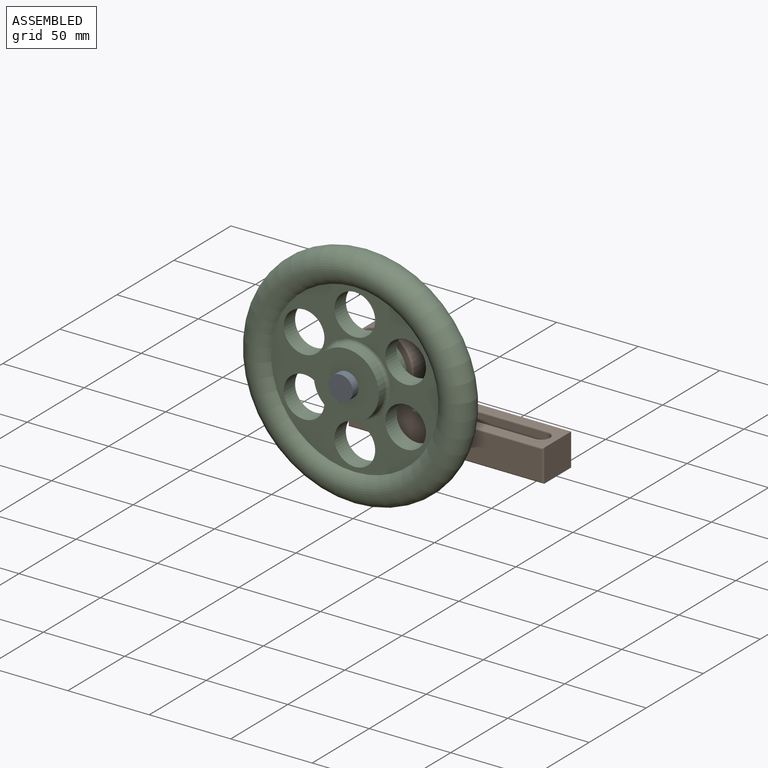
[diagram: assembled view]
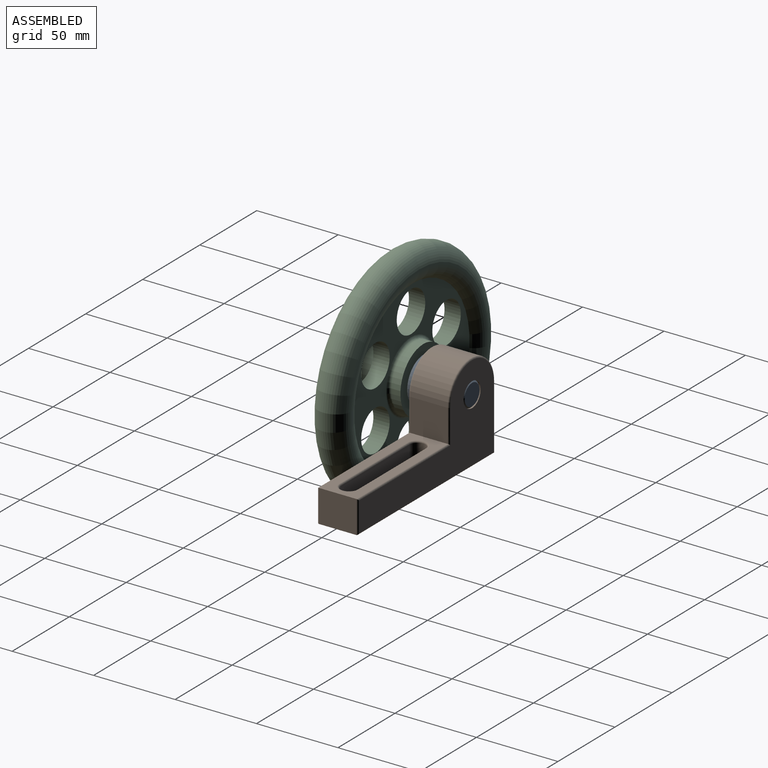
[diagram: assembled view, second angle]
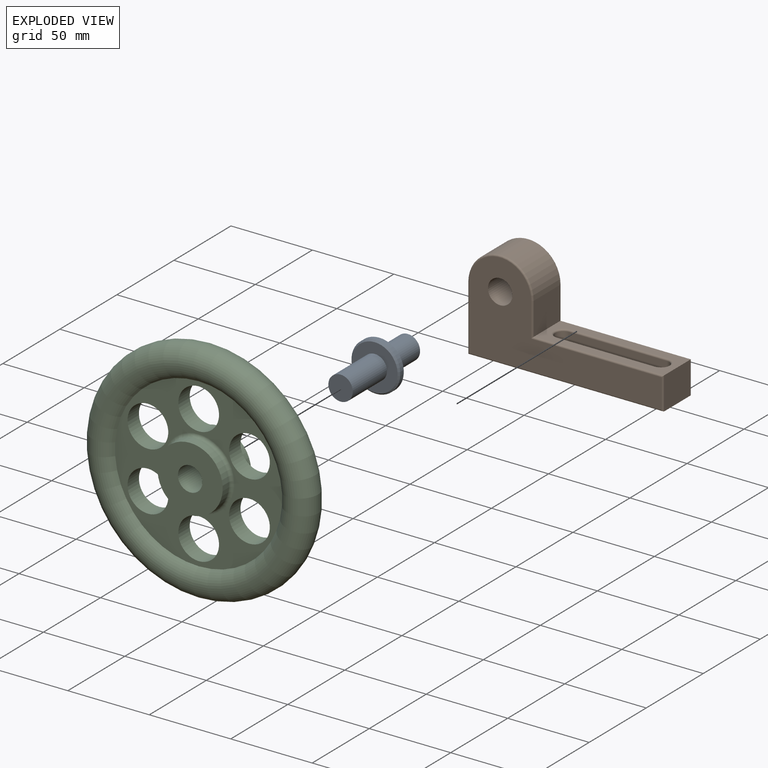
[diagram: exploded view]
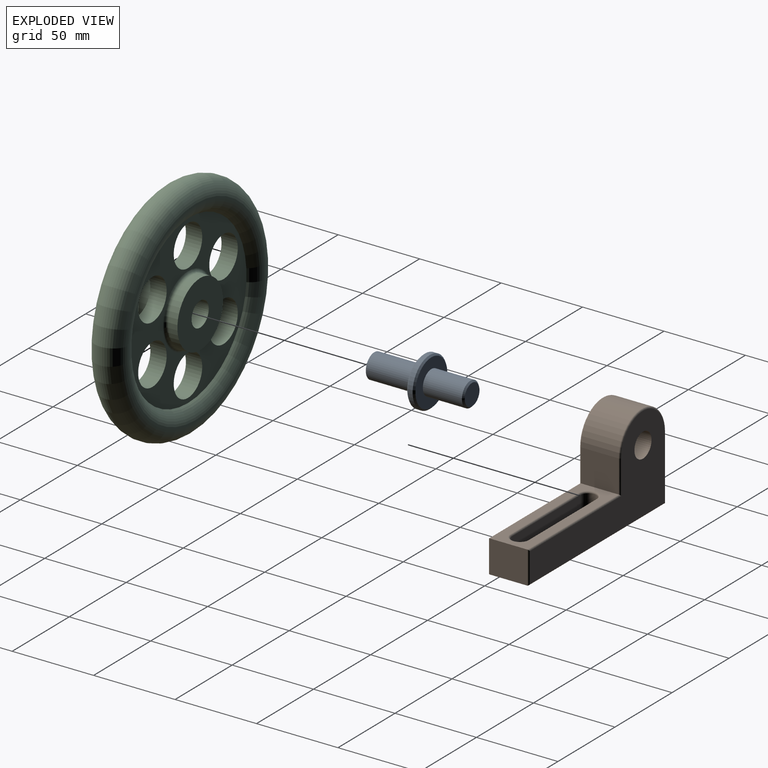
[diagram: exploded view, second angle]
ASSEMBLY  parts=3 mates=2
PART A: 10 faces, bbox 30x60x30 mm
  f0: plane 13x13mm, normal (0,1,0), area 132.7mm2, adj f9
  f1: cylinder r=7.5mm len=24mm, axis (0,1,0), area 1131mm2, adj f2,f9
  f2: plane 28x28mm, normal (0,1,0), area 439mm2, adj f1,f8
  f3: cylinder r=15mm len=30mm, axis (0,1,0), area 282.7mm2, adj f7,f8
  f4: plane 28x28mm, normal (0,-1,0), area 439mm2, adj f5,f7
  f5: cylinder r=7.5mm len=30mm, axis (0,1,0), area 1413.7mm2, adj f4,f6
  f6: plane 15x15mm, normal (0,-1,0), area 176.7mm2, adj f5
  f7: cone r=15mm half-angle=45deg, axis (0,1,0), area 128.8mm2, adj f3,f4
  f8: cone r=14mm half-angle=45deg, axis (0,-1,0), area 128.8mm2, adj f2,f3
  f9: cone r=6.5mm half-angle=45deg, axis (0,-1,0), area 62.2mm2, adj f0,f1
PART B: 33 faces, bbox 121.6x25x61.6 mm
  f0: plane 80x23mm, normal (0,0,1), area 1006.9mm2, adj f2,f5,f13,f19,f29,f30,f31,f32
  f1: plane 120x23mm, normal (0,0,-1), area 1926.9mm2, adj f4,f5,f9,f15,f25,f26,f27,f28
  f2: plane 23x20mm, normal (1,0,0), area 460mm2, adj f0,f3,f14,f20
  f3: cylinder r=20mm len=40mm, axis (0,1,0), area 1445.1mm2, adj f2,f4,f12,f18
  f4: plane 40x23mm, normal (-1,0,0), area 920mm2, adj f1,f3,f10,f16
  f5: plane 23x20mm, normal (1,0,0), area 460mm2, adj f0,f1,f11,f17
  f6: plane 118x58mm, normal (0,-1,0), area 3312.3mm2, adj f8,f9,f10,f11,f12,f13,f14
  f7: plane 118x58mm, normal (0,1,0), area 3312.3mm2, adj f8,f15,f16,f17,f18,f19,f20
  f8: cylinder r=7.5mm len=25mm, axis (0,-1,0), area 1178.1mm2, adj f6,f7
  f9: cylinder r=1mm len=120mm, axis (-1,0,0), area 187.4mm2, adj f1,f6,f10,f11
  f10: cylinder r=1mm len=40mm, axis (0,0,1), area 62.3mm2, adj f4,f6,f9,f12
  f11: cylinder r=1mm len=20mm, axis (0,0,-1), area 30.3mm2, adj f5,f6,f9,f13
  f12: torus R=19mm, axis (0,-1,0), area 96.9mm2, adj f3,f6,f10,f14
  f13: cylinder r=1mm len=81mm, axis (1,0,0), area 125.7mm2, adj f0,f6,f11,f14
  f14: cylinder r=1mm len=21mm, axis (0,0,-1), area 32mm2, adj f2,f6,f12,f13
  f15: cylinder r=1mm len=120mm, axis (1,0,0), area 187.4mm2, adj f1,f7,f16,f17
  f16: cylinder r=1mm len=40mm, axis (0,0,-1), area 62.3mm2, adj f4,f7,f15,f18
  f17: cylinder r=1mm len=20mm, axis (0,0,1), area 30.3mm2, adj f5,f7,f15,f19
  f18: torus R=19mm, axis (0,-1,0), area 96.9mm2, adj f3,f7,f16,f20
  f19: cylinder r=1mm len=81mm, axis (-1,0,0), area 125.7mm2, adj f0,f7,f17,f20
  f20: cylinder r=1mm len=21mm, axis (0,0,1), area 32mm2, adj f2,f7,f18,f19
  f21: plane 60x18mm, normal (0,-1,0), area 1080mm2, adj f22,f24,f25,f31
  f22: cylinder r=5mm len=18mm, axis (0,0,1), area 282.7mm2, adj f21,f23,f27,f29
  f23: plane 60x18mm, normal (0,1,0), area 1080mm2, adj f22,f24,f28,f30
  f24: cylinder r=5mm len=18mm, axis (0,0,1), area 282.7mm2, adj f21,f23,f26,f32
  f25: cylinder r=1mm len=60mm, axis (-1,0,0), area 94.2mm2, adj f1,f21,f26,f27
  f26: torus R=6mm, axis (0,0,-1), area 26.5mm2, adj f1,f24,f25,f28
  f27: torus R=6mm, axis (0,0,-1), area 26.5mm2, adj f1,f22,f25,f28
  f28: cylinder r=1mm len=60mm, axis (1,0,0), area 94.2mm2, adj f1,f23,f26,f27
  f29: torus R=6mm, axis (0,0,1), area 26.5mm2, adj f0,f22,f30,f31
  f30: cylinder r=1mm len=60mm, axis (-1,0,0), area 94.2mm2, adj f0,f23,f29,f32
  f31: cylinder r=1mm len=60mm, axis (1,0,0), area 94.2mm2, adj f0,f21,f29,f32
  f32: torus R=6mm, axis (0,0,1), area 26.5mm2, adj f0,f24,f30,f31
PART C: 16 faces, bbox 151.5x25x151.5 mm
  f0: plane 40x40mm, normal (0,1,0), area 1079.9mm2, adj f1,f7
  f1: cylinder r=20mm len=40mm, axis (0,-1,0), area 691.2mm2, adj f0,f8
  f2: plane 102.68x102.68mm, normal (0,1,0), area 3814.7mm2, adj f3,f8,f10,f11,f12,f13,f14,f15
  f3: torus R=60mm, axis (0,-1,0), area 20367.5mm2, adj f2,f4
  f4: plane 102.68x102.68mm, normal (0,-1,0), area 3814.7mm2, adj f3,f9,f10,f11,f12,f13,f14,f15
  f5: cylinder r=20mm len=40mm, axis (0,-1,0), area 691.2mm2, adj f6,f9
  f6: plane 40x40mm, normal (0,-1,0), area 1079.9mm2, adj f5,f7
  f7: cylinder r=7.5mm len=25mm, axis (0,-1,0), area 1178.1mm2, adj f0,f6
  f8: torus R=22mm, axis (0,-1,0), area 409.1mm2, adj f1,f2
  f9: torus R=22mm, axis (0,-1,0), area 409.1mm2, adj f4,f5
  f10: cylinder r=12.5mm len=25mm, axis (0,-1,0), area 785.4mm2, adj f2,f4
  f11: cylinder r=12.5mm len=25mm, axis (0,-1,0), area 785.4mm2, adj f2,f4
  f12: cylinder r=12.5mm len=25mm, axis (0,-1,0), area 785.4mm2, adj f2,f4
  f13: cylinder r=12.5mm len=25mm, axis (0,-1,0), area 785.4mm2, adj f2,f4
  f14: cylinder r=12.5mm len=25mm, axis (0,-1,0), area 785.4mm2, adj f2,f4
  f15: cylinder r=12.5mm len=25mm, axis (0,-1,0), area 785.4mm2, adj f2,f4
PLACE A t=(-153.84,-45.4,-22.38)mm
PLACE B t=(-53.84,-45.4,-62.38)mm
PLACE C t=(-153.84,-87.9,-22.38)mm
MATE fastened B.f3 <-> A.f1  axis (0,-1,0) through (-153.84,-70.4,-22.38)mm
MATE revolute C.f1 <-> A.f1  axis (0,1,0) through (-153.84,-75.4,-22.38)mm
